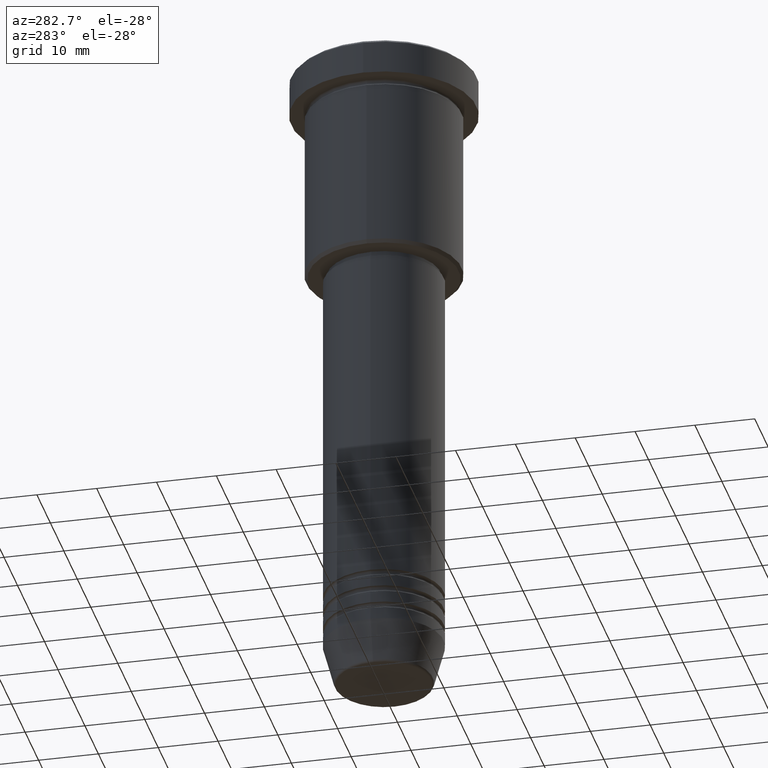
[diagram: clean part render]
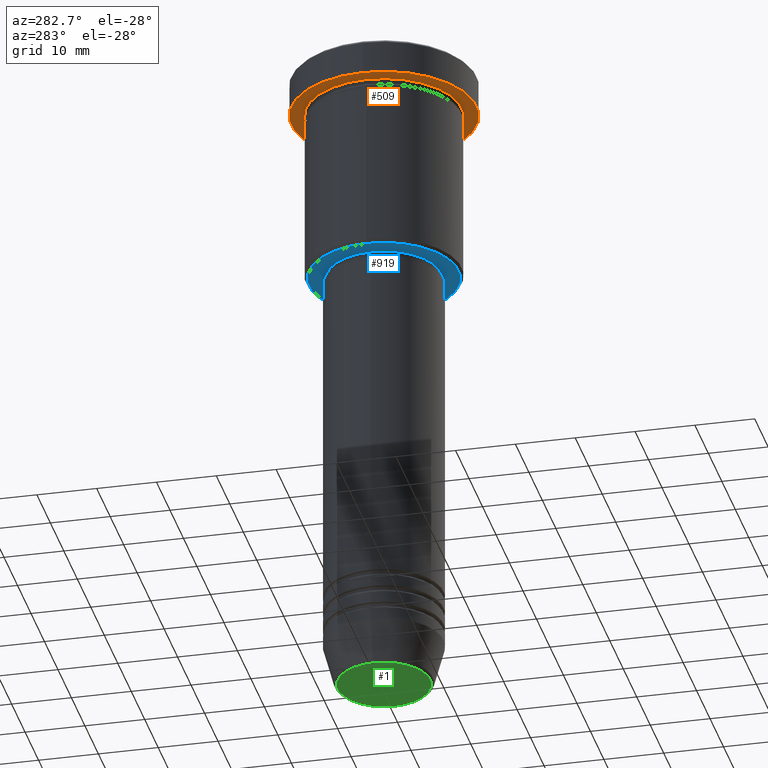
[diagram: same view with three faces highlighted in distinct colors, each labeled with its STEP entity id]
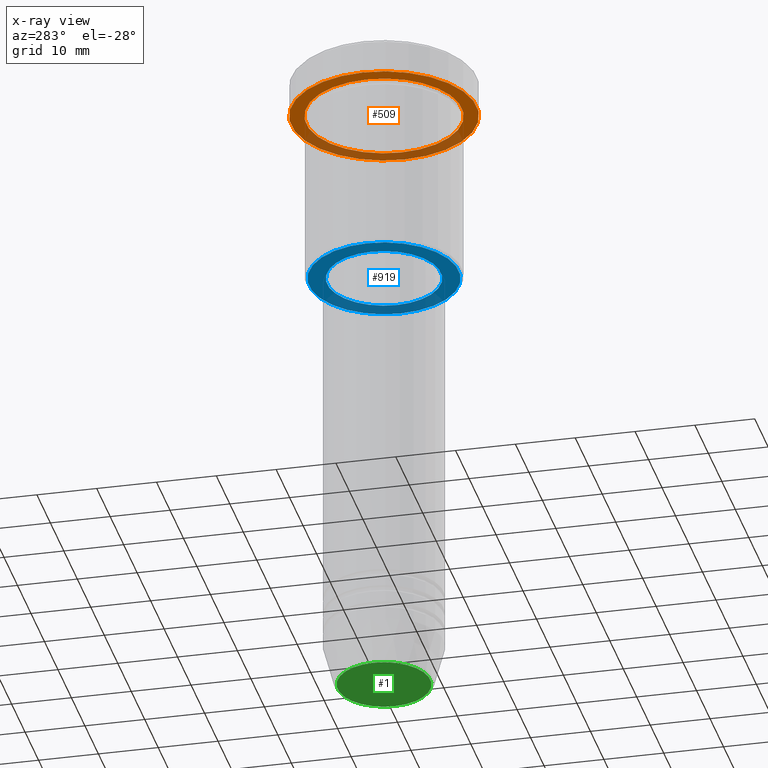
[diagram: x-ray of the same camera — body ghosted, the three highlighted faces saturated]
A machine part, auxiliary view with three faces highlighted in distinct colors.
The next image is the same camera in x-ray (body ghosted, the three faces saturated) — at least one of them is partly hidden behind the body in this view.
Their STEP definitions:

[orange] entity #509 — the highlighted planar face has unit normal (0, 0, -1).
#17 = CARTESIAN_POINT ( 'NONE',  ( 0.000000000000000000, 15.50000000000000000, -5.999999999999995559 ) ) ;
#43 = ORIENTED_EDGE ( 'NONE', *, *, #883, .T. ) ;
#47 = ORIENTED_EDGE ( 'NONE', *, *, #544, .F. ) ;
#79 = DIRECTION ( 'NONE',  ( -1.000000000000000000, 0.000000000000000000, -0.000000000000000000 ) ) ;
#86 = FACE_OUTER_BOUND ( 'NONE', #482, .T. ) ;
#97 = DIRECTION ( 'NONE',  ( -0.000000000000000000, -0.000000000000000000, 1.000000000000000000 ) ) ;
#105 = PLANE ( 'NONE',  #873 ) ;
#120 = VERTEX_POINT ( 'NONE', #432 ) ;
#125 = CARTESIAN_POINT ( 'NONE',  ( -15.50000000000000000, 1.898202538678397557E-15, -5.999999999999995559 ) ) ;
#130 = AXIS2_PLACEMENT_3D ( 'NONE', #555, #97, #286 ) ;
#214 = DIRECTION ( 'NONE',  ( -0.000000000000000000, -0.000000000000000000, 1.000000000000000000 ) ) ;
#251 = DIRECTION ( 'NONE',  ( -0.000000000000000000, -0.000000000000000000, 1.000000000000000000 ) ) ;
#286 = DIRECTION ( 'NONE',  ( -1.000000000000000000, 0.000000000000000000, 0.000000000000000000 ) ) ;
#296 = AXIS2_PLACEMENT_3D ( 'NONE', #1000, #817, #923 ) ;
#386 = DIRECTION ( 'NONE',  ( 1.000000000000000000, 0.000000000000000000, 0.000000000000000000 ) ) ;
#415 = CARTESIAN_POINT ( 'NONE',  ( 0.000000000000000000, 0.000000000000000000, -5.999999999999995559 ) ) ;
#427 = VERTEX_POINT ( 'NONE', #125 ) ;
#428 = CIRCLE ( 'NONE', #1098, 13.00000000000000000 ) ;
#432 = CARTESIAN_POINT ( 'NONE',  ( -13.00000000000000000, 0.000000000000000000, -5.999999999999994671 ) ) ;
#447 = CIRCLE ( 'NONE', #130, 13.00000000000000000 ) ;
#482 = EDGE_LOOP ( 'NONE', ( #1140, #47 ) ) ;
#509 = ADVANCED_FACE ( 'NONE', ( #725, #86 ), #105, .T. ) ;
#526 = EDGE_CURVE ( 'NONE', #1164, #120, #447, .T. ) ;
#544 = EDGE_CURVE ( 'NONE', #427, #801, #796, .T. ) ;
#555 = CARTESIAN_POINT ( 'NONE',  ( 0.000000000000000000, 0.000000000000000000, -5.999999999999995559 ) ) ;
#612 = CARTESIAN_POINT ( 'NONE',  ( 15.50000000000000000, 0.000000000000000000, -5.999999999999995559 ) ) ;
#711 = ORIENTED_EDGE ( 'NONE', *, *, #526, .T. ) ;
#723 = EDGE_CURVE ( 'NONE', #801, #427, #1177, .T. ) ;
#725 = FACE_BOUND ( 'NONE', #918, .T. ) ;
#766 = CARTESIAN_POINT ( 'NONE',  ( 0.000000000000000000, 0.000000000000000000, -5.999999999999995559 ) ) ;
#784 = DIRECTION ( 'NONE',  ( -1.000000000000000000, 0.000000000000000000, 0.000000000000000000 ) ) ;
#796 = CIRCLE ( 'NONE', #296, 15.50000000000000000 ) ;
#801 = VERTEX_POINT ( 'NONE', #612 ) ;
#817 = DIRECTION ( 'NONE',  ( -0.000000000000000000, -0.000000000000000000, 1.000000000000000000 ) ) ;
#873 = AXIS2_PLACEMENT_3D ( 'NONE', #17, #1108, #79 ) ;
#883 = EDGE_CURVE ( 'NONE', #120, #1164, #428, .T. ) ;
#918 = EDGE_LOOP ( 'NONE', ( #43, #711 ) ) ;
#923 = DIRECTION ( 'NONE',  ( 1.000000000000000000, 0.000000000000000000, 0.000000000000000000 ) ) ;
#1000 = CARTESIAN_POINT ( 'NONE',  ( 0.000000000000000000, 0.000000000000000000, -5.999999999999995559 ) ) ;
#1064 = AXIS2_PLACEMENT_3D ( 'NONE', #766, #214, #386 ) ;
#1098 = AXIS2_PLACEMENT_3D ( 'NONE', #415, #251, #784 ) ;
#1108 = DIRECTION ( 'NONE',  ( 0.000000000000000000, 0.000000000000000000, -1.000000000000000000 ) ) ;
#1113 = CARTESIAN_POINT ( 'NONE',  ( 13.00000000000000000, 1.592040838891559095E-15, -5.999999999999994671 ) ) ;
#1140 = ORIENTED_EDGE ( 'NONE', *, *, #723, .F. ) ;
#1164 = VERTEX_POINT ( 'NONE', #1113 ) ;
#1177 = CIRCLE ( 'NONE', #1064, 15.50000000000000000 ) ;

[blue] entity #919 — the highlighted planar face has unit normal (0, 0, -1).
#36 = CARTESIAN_POINT ( 'NONE',  ( 0.000000000000000000, 0.000000000000000000, -36.00000000000000711 ) ) ;
#51 = VERTEX_POINT ( 'NONE', #522 ) ;
#80 = VERTEX_POINT ( 'NONE', #533 ) ;
#91 = CIRCLE ( 'NONE', #242, 9.500000000000000000 ) ;
#109 = AXIS2_PLACEMENT_3D ( 'NONE', #196, #184, #897 ) ;
#114 = CARTESIAN_POINT ( 'NONE',  ( -9.500000000000000000, 1.163414459189985485E-15, -36.00000000000000711 ) ) ;
#119 = DIRECTION ( 'NONE',  ( 1.000000000000000000, 0.000000000000000000, 0.000000000000000000 ) ) ;
#139 = DIRECTION ( 'NONE',  ( -1.000000000000000000, 0.000000000000000000, 0.000000000000000000 ) ) ;
#184 = DIRECTION ( 'NONE',  ( 0.000000000000000000, 0.000000000000000000, -1.000000000000000000 ) ) ;
#196 = CARTESIAN_POINT ( 'NONE',  ( 0.000000000000000000, 0.000000000000000000, -36.00000000000000711 ) ) ;
#240 = DIRECTION ( 'NONE',  ( 0.000000000000000000, 0.000000000000000000, -1.000000000000000000 ) ) ;
#242 = AXIS2_PLACEMENT_3D ( 'NONE', #36, #674, #119 ) ;
#315 = AXIS2_PLACEMENT_3D ( 'NONE', #400, #772, #139 ) ;
#334 = AXIS2_PLACEMENT_3D ( 'NONE', #788, #240, #1054 ) ;
#400 = CARTESIAN_POINT ( 'NONE',  ( 0.000000000000000000, 0.000000000000000000, -36.00000000000000711 ) ) ;
#419 = FACE_OUTER_BOUND ( 'NONE', #1150, .T. ) ;
#433 = ORIENTED_EDGE ( 'NONE', *, *, #512, .T. ) ;
#500 = ORIENTED_EDGE ( 'NONE', *, *, #900, .T. ) ;
#506 = VERTEX_POINT ( 'NONE', #636 ) ;
#512 = EDGE_CURVE ( 'NONE', #506, #80, #586, .T. ) ;
#522 = CARTESIAN_POINT ( 'NONE',  ( 9.500000000000000000, 0.000000000000000000, -36.00000000000000711 ) ) ;
#533 = CARTESIAN_POINT ( 'NONE',  ( -12.50000000000001066, 1.561424668912876097E-15, -36.00000000000000711 ) ) ;
#586 = CIRCLE ( 'NONE', #109, 12.50000000000001066 ) ;
#594 = DIRECTION ( 'NONE',  ( -0.000000000000000000, -0.000000000000000000, 1.000000000000000000 ) ) ;
#636 = CARTESIAN_POINT ( 'NONE',  ( 12.50000000000001066, 0.000000000000000000, -36.00000000000000711 ) ) ;
#662 = CIRCLE ( 'NONE', #762, 9.500000000000000000 ) ;
#673 = EDGE_CURVE ( 'NONE', #778, #51, #91, .T. ) ;
#674 = DIRECTION ( 'NONE',  ( -0.000000000000000000, -0.000000000000000000, 1.000000000000000000 ) ) ;
#680 = ORIENTED_EDGE ( 'NONE', *, *, #745, .T. ) ;
#690 = PLANE ( 'NONE',  #334 ) ;
#745 = EDGE_CURVE ( 'NONE', #80, #506, #907, .T. ) ;
#762 = AXIS2_PLACEMENT_3D ( 'NONE', #1058, #594, #803 ) ;
#772 = DIRECTION ( 'NONE',  ( 0.000000000000000000, 0.000000000000000000, -1.000000000000000000 ) ) ;
#778 = VERTEX_POINT ( 'NONE', #114 ) ;
#788 = CARTESIAN_POINT ( 'NONE',  ( 0.000000000000000000, 13.00000000000000000, -36.00000000000000711 ) ) ;
#803 = DIRECTION ( 'NONE',  ( 1.000000000000000000, 0.000000000000000000, 0.000000000000000000 ) ) ;
#870 = ORIENTED_EDGE ( 'NONE', *, *, #673, .T. ) ;
#880 = FACE_BOUND ( 'NONE', #1146, .T. ) ;
#897 = DIRECTION ( 'NONE',  ( -1.000000000000000000, 0.000000000000000000, 0.000000000000000000 ) ) ;
#900 = EDGE_CURVE ( 'NONE', #51, #778, #662, .T. ) ;
#907 = CIRCLE ( 'NONE', #315, 12.50000000000001066 ) ;
#919 = ADVANCED_FACE ( 'NONE', ( #419, #880 ), #690, .T. ) ;
#1054 = DIRECTION ( 'NONE',  ( -1.000000000000000000, 0.000000000000000000, -0.000000000000000000 ) ) ;
#1058 = CARTESIAN_POINT ( 'NONE',  ( 0.000000000000000000, 0.000000000000000000, -36.00000000000000711 ) ) ;
#1146 = EDGE_LOOP ( 'NONE', ( #500, #870 ) ) ;
#1150 = EDGE_LOOP ( 'NONE', ( #433, #680 ) ) ;

[green] entity #1 — the highlighted planar face has unit normal (0, -0, 1).
#1 = ADVANCED_FACE ( 'NONE', ( #95 ), #1167, .F. ) ;
#56 = CARTESIAN_POINT ( 'NONE',  ( 0.000000000000000000, 0.000000000000000000, -111.0000000000000000 ) ) ;
#84 = CARTESIAN_POINT ( 'NONE',  ( 0.000000000000000000, 0.000000000000000000, -111.0000000000000000 ) ) ;
#95 = FACE_OUTER_BOUND ( 'NONE', #249, .T. ) ;
#201 = CARTESIAN_POINT ( 'NONE',  ( -7.740692158992658278, 9.775343368540041107E-16, -111.0000000000000000 ) ) ;
#246 = CARTESIAN_POINT ( 'NONE',  ( 0.000000000000000000, 0.000000000000000000, -111.0000000000000000 ) ) ;
#249 = EDGE_LOOP ( 'NONE', ( #961, #886 ) ) ;
#308 = CARTESIAN_POINT ( 'NONE',  ( 7.740692158992658278, 0.000000000000000000, -111.0000000000000000 ) ) ;
#358 = DIRECTION ( 'NONE',  ( 1.000000000000000000, 0.000000000000000000, 0.000000000000000000 ) ) ;
#411 = VERTEX_POINT ( 'NONE', #308 ) ;
#505 = DIRECTION ( 'NONE',  ( 0.000000000000000000, 0.000000000000000000, -1.000000000000000000 ) ) ;
#545 = AXIS2_PLACEMENT_3D ( 'NONE', #246, #1166, #876 ) ;
#565 = CIRCLE ( 'NONE', #545, 7.740692158992658278 ) ;
#675 = VERTEX_POINT ( 'NONE', #201 ) ;
#713 = AXIS2_PLACEMENT_3D ( 'NONE', #84, #992, #358 ) ;
#797 = AXIS2_PLACEMENT_3D ( 'NONE', #56, #505, #869 ) ;
#848 = EDGE_CURVE ( 'NONE', #675, #411, #565, .T. ) ;
#855 = EDGE_CURVE ( 'NONE', #411, #675, #890, .T. ) ;
#869 = DIRECTION ( 'NONE',  ( 1.000000000000000000, 0.000000000000000000, 0.000000000000000000 ) ) ;
#876 = DIRECTION ( 'NONE',  ( 1.000000000000000000, 0.000000000000000000, 0.000000000000000000 ) ) ;
#886 = ORIENTED_EDGE ( 'NONE', *, *, #848, .T. ) ;
#890 = CIRCLE ( 'NONE', #797, 7.740692158992658278 ) ;
#961 = ORIENTED_EDGE ( 'NONE', *, *, #855, .T. ) ;
#992 = DIRECTION ( 'NONE',  ( 0.000000000000000000, -0.000000000000000000, 1.000000000000000000 ) ) ;
#1166 = DIRECTION ( 'NONE',  ( 0.000000000000000000, 0.000000000000000000, -1.000000000000000000 ) ) ;
#1167 = PLANE ( 'NONE',  #713 ) ;